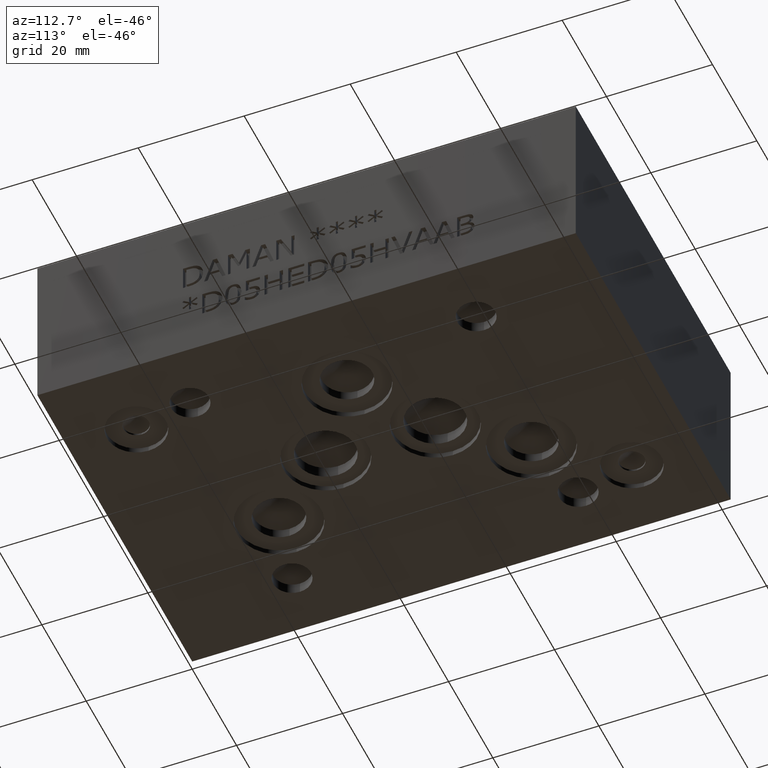
[diagram: clean part render]
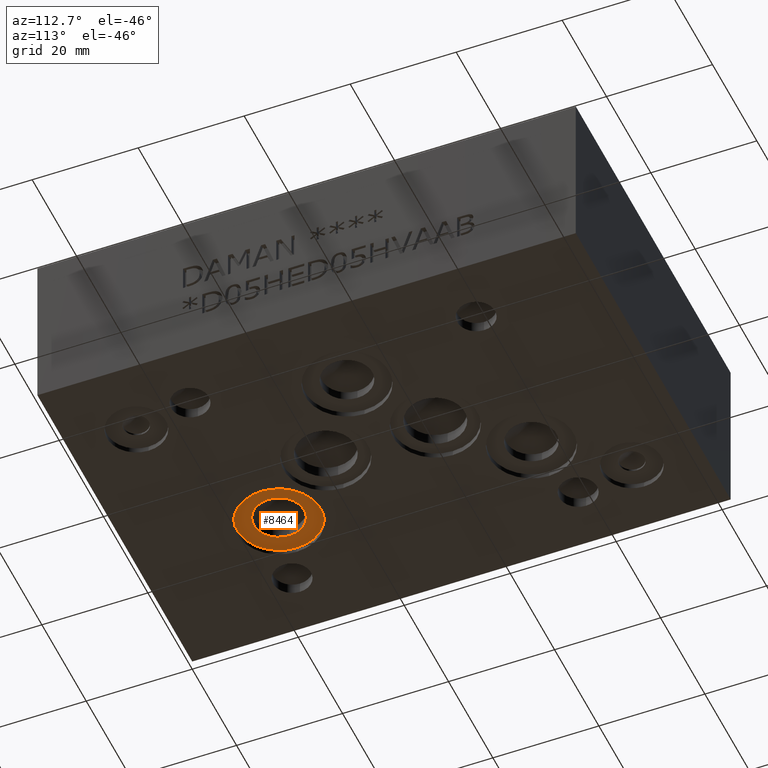
[diagram: same view with one face highlighted and labeled with its STEP entity id]
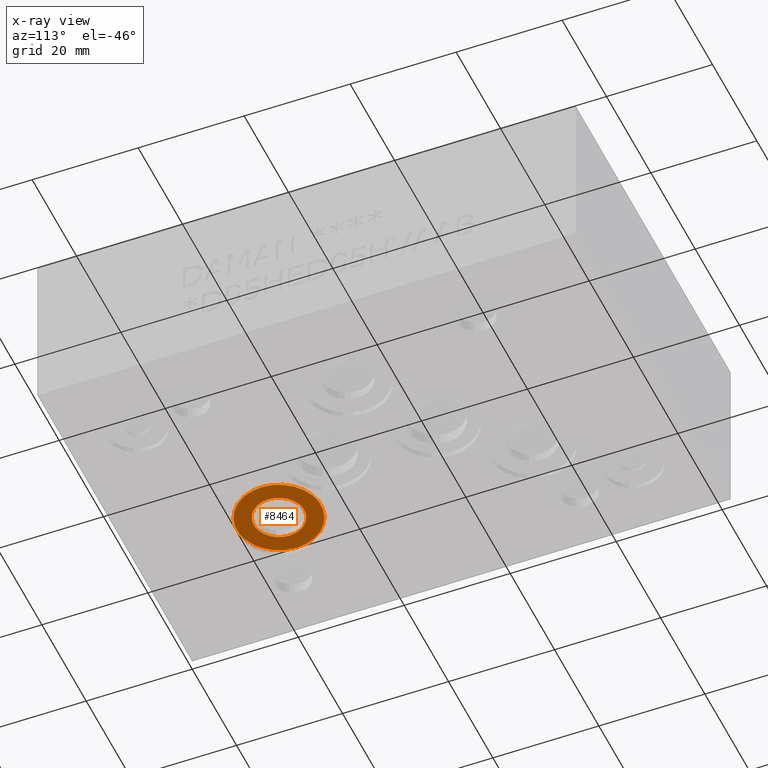
[diagram: x-ray of the same camera — body ghosted, the highlighted face saturated]
A machine part, auxiliary view. The second image highlights one B-rep face of the part: STEP entity #8464.
The next image is the same camera in x-ray: the body ghosted, the highlighted face saturated — about 0% of this face is hidden behind the body in this view.
In plain terms, the highlighted planar face has unit normal (0, 0, -1).
Its self-contained STEP definition (entity closure, byte-faithful):
#71=CIRCLE('',#8835,4.7625);
#90=CIRCLE('',#8863,7.9375);
#91=CIRCLE('',#8864,7.9375);
#213=FACE_BOUND('',#1355,.T.);
#889=FACE_OUTER_BOUND('',#1354,.T.);
#1354=EDGE_LOOP('',(#7216,#7217));
#1355=EDGE_LOOP('',(#7218));
#3859=VERTEX_POINT('',#13988);
#3878=VERTEX_POINT('',#14040);
#3879=VERTEX_POINT('',#14042);
#4993=EDGE_CURVE('',#3859,#3859,#71,.T.);
#5018=EDGE_CURVE('',#3879,#3878,#90,.T.);
#5019=EDGE_CURVE('',#3878,#3879,#91,.T.);
#7216=ORIENTED_EDGE('',*,*,#5018,.T.);
#7217=ORIENTED_EDGE('',*,*,#5019,.T.);
#7218=ORIENTED_EDGE('',*,*,#4993,.T.);
#7716=PLANE('',#8865);
#8464=ADVANCED_FACE('',(#889,#213),#7716,.T.);
#8835=AXIS2_PLACEMENT_3D('',#13989,#10434,#10435);
#8863=AXIS2_PLACEMENT_3D('',#14043,#10496,#10497);
#8864=AXIS2_PLACEMENT_3D('',#14044,#10498,#10499);
#8865=AXIS2_PLACEMENT_3D('',#14045,#10500,#10501);
#10434=DIRECTION('center_axis',(0.,0.,1.));
#10435=DIRECTION('ref_axis',(1.,0.,0.));
#10496=DIRECTION('center_axis',(0.,0.,-1.));
#10497=DIRECTION('ref_axis',(1.,0.,0.));
#10498=DIRECTION('center_axis',(0.,0.,-1.));
#10499=DIRECTION('ref_axis',(1.,0.,0.));
#10500=DIRECTION('center_axis',(0.,0.,-1.));
#10501=DIRECTION('ref_axis',(1.,0.,0.));
#13988=CARTESIAN_POINT('',(20.6375,27.0002,1.016));
#13989=CARTESIAN_POINT('Origin',(25.4,27.0002,1.016));
#14040=CARTESIAN_POINT('',(17.4625,27.0002,1.016));
#14042=CARTESIAN_POINT('',(33.3375,27.0002,1.016));
#14043=CARTESIAN_POINT('Origin',(25.4,27.0002,1.016));
#14044=CARTESIAN_POINT('Origin',(25.4,27.0002,1.016));
#14045=CARTESIAN_POINT('Origin',(25.4,27.0002,1.016));